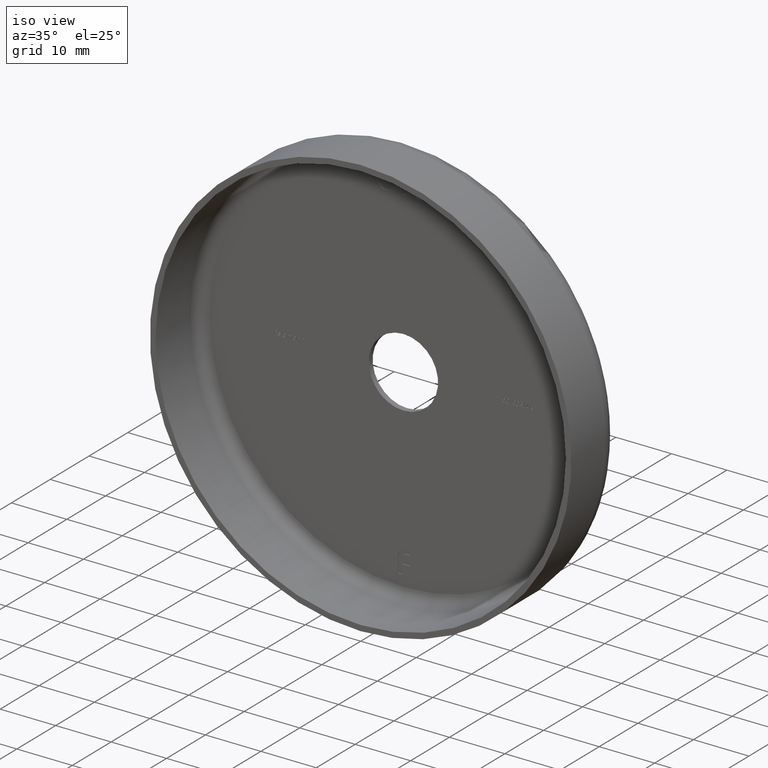
[diagram: clean part render]
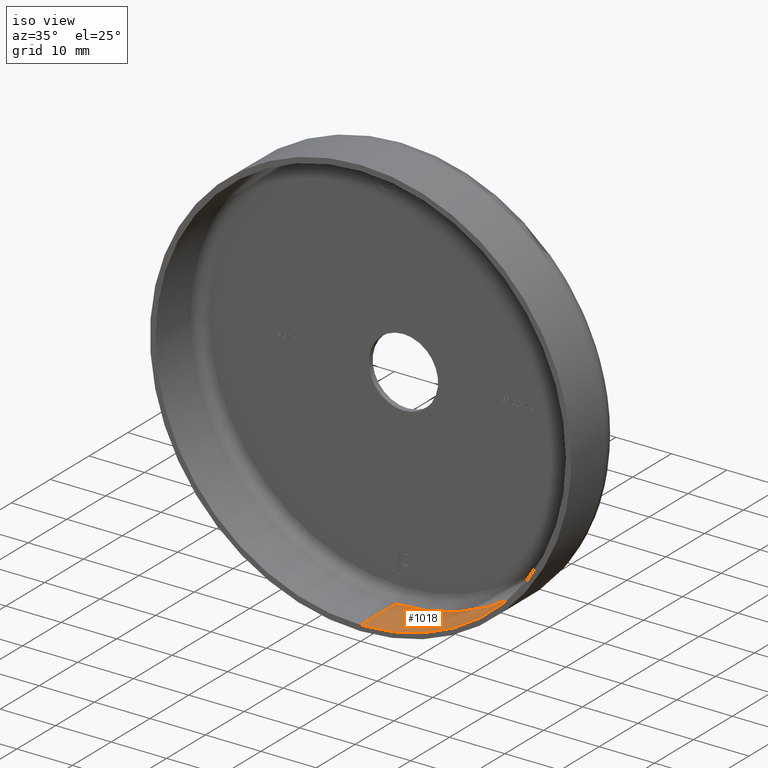
[diagram: same view with one face highlighted and labeled with its STEP entity id]
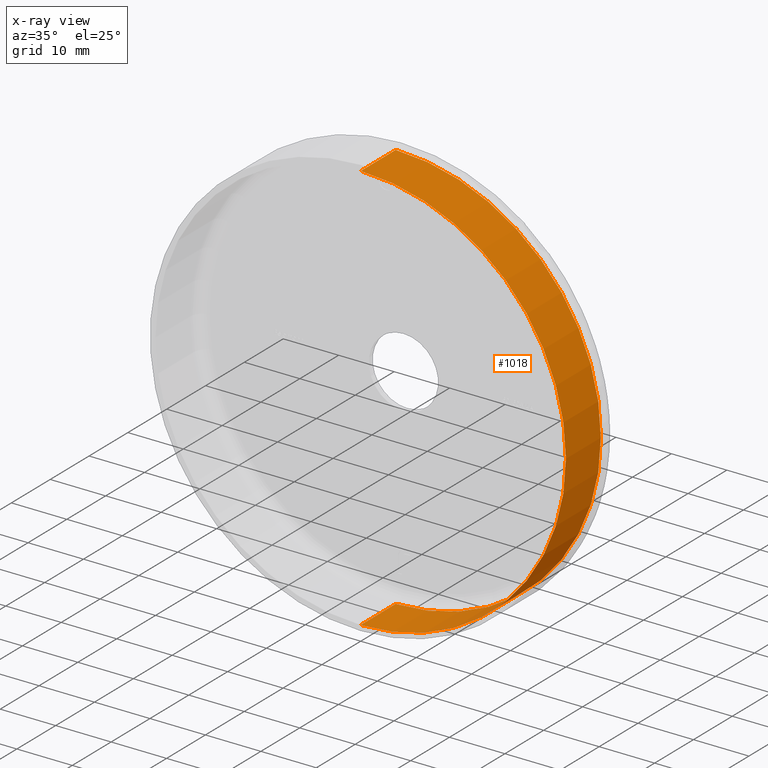
[diagram: x-ray of the same camera — body ghosted, the highlighted face saturated]
A machine part, iso view. The second image highlights one B-rep face of the part: STEP entity #1018.
The next image is the same camera in x-ray: the body ghosted, the highlighted face saturated — about 0% of this face is hidden behind the body in this view.
In plain terms, the highlighted cylindrical surface (partial cylindrical patch) has radius 37 mm, axis along (-0, -1, -0).
Its self-contained STEP definition (entity closure, byte-faithful):
#786 = EDGE_LOOP ( 'NONE', ( #11476, #2276, #14346, #2561 ) ) ;
#1018 = ADVANCED_FACE ( 'NONE', ( #4451 ), #13278, .F. ) ;
#1119 = DIRECTION ( 'NONE',  ( 0.000000000000000000, 0.000000000000000000, -1.000000000000000000 ) ) ;
#2012 = DIRECTION ( 'NONE',  ( 0.000000000000000000, 0.000000000000000000, -1.000000000000000000 ) ) ;
#2276 = ORIENTED_EDGE ( 'NONE', *, *, #2990, .F. ) ;
#2561 = ORIENTED_EDGE ( 'NONE', *, *, #4012, .T. ) ;
#2990 = EDGE_CURVE ( 'NONE', #3836, #12347, #11468, .T. ) ;
#3030 = CARTESIAN_POINT ( 'NONE',  ( 4.531193156845207581E-15, 9.000000000000001776, 37.00000000000000711 ) ) ;
#3050 = EDGE_CURVE ( 'NONE', #3836, #14089, #3456, .T. ) ;
#3355 = CARTESIAN_POINT ( 'NONE',  ( 0.000000000000000000, 0.000000000000000000, -37.00000000000000711 ) ) ;
#3456 = LINE ( 'NONE', #3355, #3820 ) ;
#3820 = VECTOR ( 'NONE', #5713, 1000.000000000000000 ) ;
#3836 = VERTEX_POINT ( 'NONE', #10152 ) ;
#4012 = EDGE_CURVE ( 'NONE', #14089, #5201, #13517, .T. ) ;
#4102 = DIRECTION ( 'NONE',  ( -0.000000000000000000, -1.000000000000000000, -0.000000000000000000 ) ) ;
#4451 = FACE_OUTER_BOUND ( 'NONE', #786, .T. ) ;
#4515 = CARTESIAN_POINT ( 'NONE',  ( 0.000000000000000000, 9.000000000000001776, 0.000000000000000000 ) ) ;
#4661 = AXIS2_PLACEMENT_3D ( 'NONE', #8463, #7208, #8420 ) ;
#4869 = CARTESIAN_POINT ( 'NONE',  ( 0.000000000000000000, -1.224646799147353207E-16, -37.00000000000000711 ) ) ;
#5070 = CARTESIAN_POINT ( 'NONE',  ( 4.531193156845207581E-15, -1.224646799147353207E-16, 37.00000000000000711 ) ) ;
#5201 = VERTEX_POINT ( 'NONE', #5070 ) ;
#5713 = DIRECTION ( 'NONE',  ( -0.000000000000000000, -1.000000000000000000, -0.000000000000000000 ) ) ;
#6779 = DIRECTION ( 'NONE',  ( -0.000000000000000000, -1.000000000000000000, -0.000000000000000000 ) ) ;
#7208 = DIRECTION ( 'NONE',  ( -0.000000000000000000, -1.000000000000000000, -0.000000000000000000 ) ) ;
#8420 = DIRECTION ( 'NONE',  ( 0.000000000000000000, 0.000000000000000000, -1.000000000000000000 ) ) ;
#8463 = CARTESIAN_POINT ( 'NONE',  ( 0.000000000000000000, -1.224646799147353207E-16, 0.000000000000000000 ) ) ;
#8506 = EDGE_CURVE ( 'NONE', #12347, #5201, #9325, .T. ) ;
#8608 = CARTESIAN_POINT ( 'NONE',  ( 0.000000000000000000, 0.000000000000000000, 0.000000000000000000 ) ) ;
#9325 = LINE ( 'NONE', #11779, #11237 ) ;
#10152 = CARTESIAN_POINT ( 'NONE',  ( 0.000000000000000000, 9.000000000000001776, -37.00000000000000711 ) ) ;
#10860 = DIRECTION ( 'NONE',  ( -0.000000000000000000, -1.000000000000000000, -0.000000000000000000 ) ) ;
#11237 = VECTOR ( 'NONE', #4102, 1000.000000000000000 ) ;
#11468 = CIRCLE ( 'NONE', #14322, 37.00000000000000711 ) ;
#11476 = ORIENTED_EDGE ( 'NONE', *, *, #8506, .F. ) ;
#11779 = CARTESIAN_POINT ( 'NONE',  ( 4.531193156845207581E-15, 0.000000000000000000, 37.00000000000000711 ) ) ;
#12347 = VERTEX_POINT ( 'NONE', #3030 ) ;
#12920 = AXIS2_PLACEMENT_3D ( 'NONE', #8608, #10860, #2012 ) ;
#13278 = CYLINDRICAL_SURFACE ( 'NONE', #12920, 37.00000000000000711 ) ;
#13517 = CIRCLE ( 'NONE', #4661, 37.00000000000000711 ) ;
#14089 = VERTEX_POINT ( 'NONE', #4869 ) ;
#14322 = AXIS2_PLACEMENT_3D ( 'NONE', #4515, #6779, #1119 ) ;
#14346 = ORIENTED_EDGE ( 'NONE', *, *, #3050, .T. ) ;